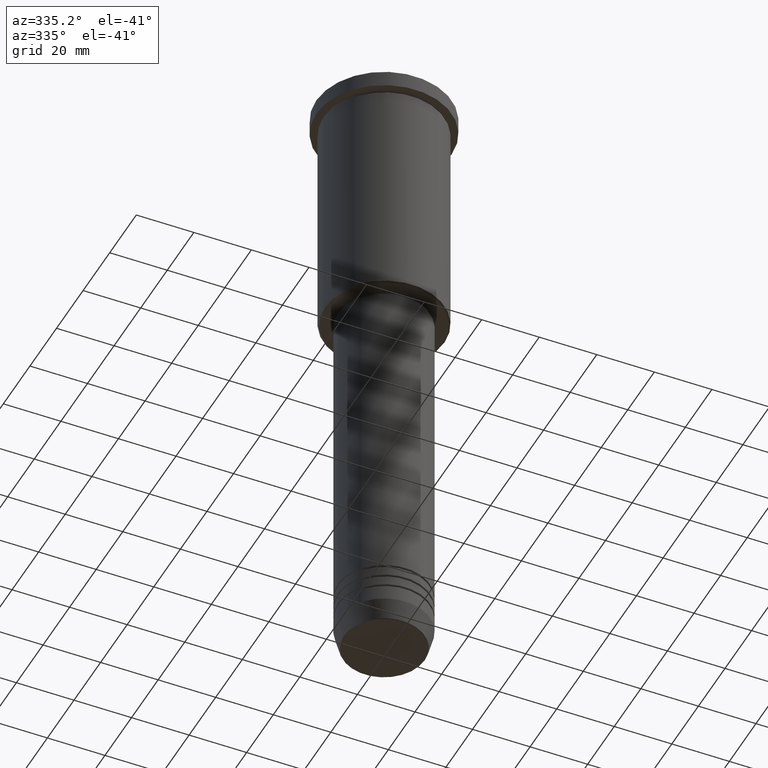
[diagram: clean part render]
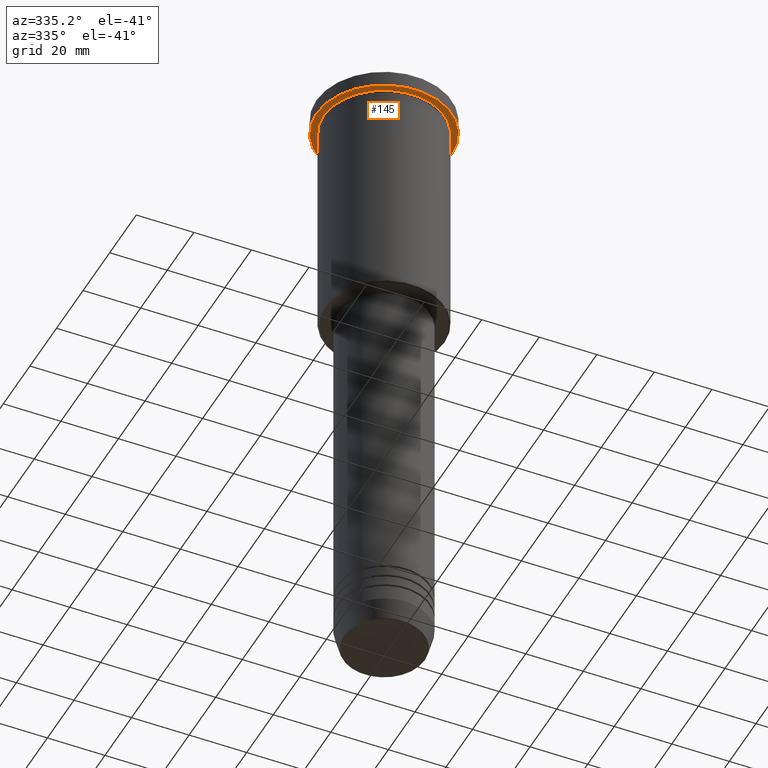
[diagram: same view with one face highlighted and labeled with its STEP entity id]
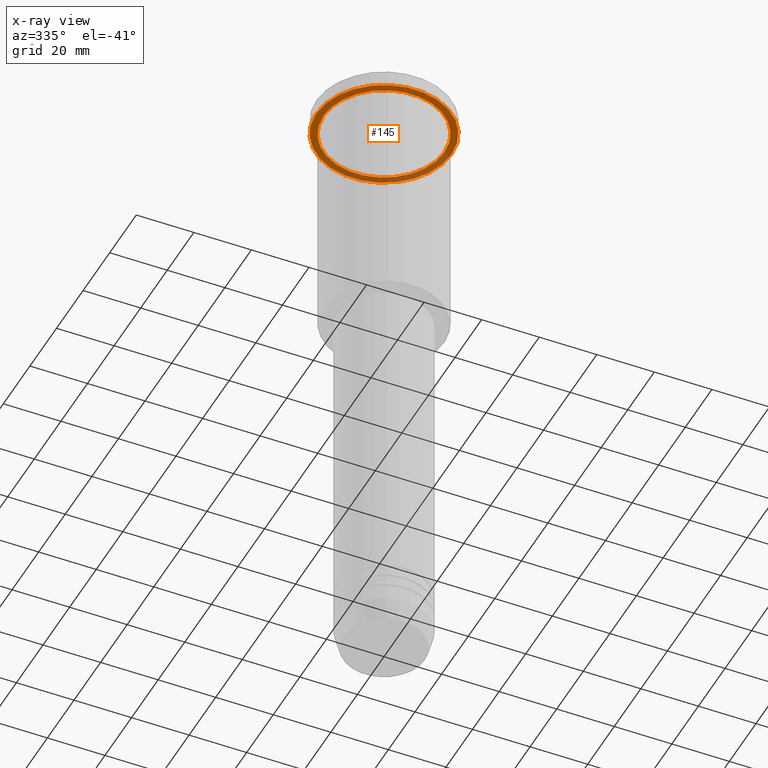
[diagram: x-ray of the same camera — body ghosted, the highlighted face saturated]
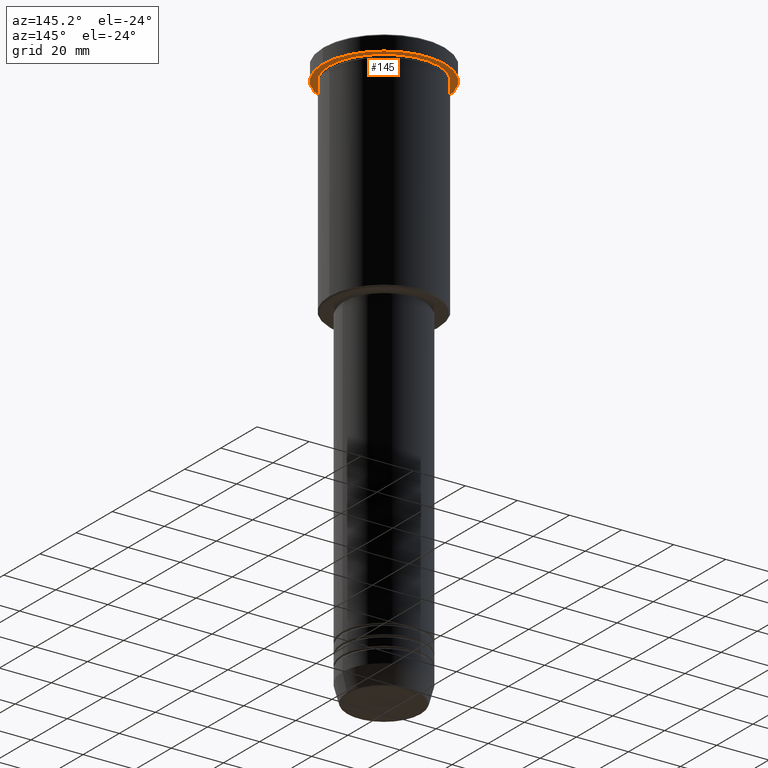
[diagram: same view with one face highlighted and labeled with its STEP entity id]
A machine part, auxiliary view. The second image highlights one B-rep face of the part: STEP entity #145.
The next image is the same camera in x-ray: the body ghosted, the highlighted face saturated — about 35% of this face is hidden behind the body in this view.
A second angle (auxiliary view) of the same face is appended — the face is thin or edge-on in the first view.
In plain terms, the highlighted planar face has unit normal (0, 0, -1).
Its self-contained STEP definition (entity closure, byte-faithful):
#5 = CARTESIAN_POINT ( 'NONE',  ( 0.000000000000000000, 23.50000000000000000, -5.999999999999993783 ) ) ;
#39 = AXIS2_PLACEMENT_3D ( 'NONE', #1126, #550, #758 ) ;
#46 = CIRCLE ( 'NONE', #347, 23.50000000000000000 ) ;
#55 = VERTEX_POINT ( 'NONE', #236 ) ;
#131 = DIRECTION ( 'NONE',  ( -0.000000000000000000, -0.000000000000000000, 1.000000000000000000 ) ) ;
#144 = ORIENTED_EDGE ( 'NONE', *, *, #281, .F. ) ;
#145 = ADVANCED_FACE ( 'NONE', ( #468, #353 ), #719, .T. ) ;
#163 = VERTEX_POINT ( 'NONE', #714 ) ;
#171 = EDGE_LOOP ( 'NONE', ( #144, #385 ) ) ;
#190 = VERTEX_POINT ( 'NONE', #543 ) ;
#236 = CARTESIAN_POINT ( 'NONE',  ( 23.50000000000000000, 0.000000000000000000, -5.999999999999993783 ) ) ;
#281 = EDGE_CURVE ( 'NONE', #55, #163, #46, .T. ) ;
#292 = CARTESIAN_POINT ( 'NONE',  ( 21.00000000000000000, 2.571758278209441661E-15, -5.999999999999992895 ) ) ;
#316 = DIRECTION ( 'NONE',  ( -0.000000000000000000, -0.000000000000000000, 1.000000000000000000 ) ) ;
#347 = AXIS2_PLACEMENT_3D ( 'NONE', #402, #743, #1021 ) ;
#353 = FACE_OUTER_BOUND ( 'NONE', #171, .T. ) ;
#385 = ORIENTED_EDGE ( 'NONE', *, *, #398, .F. ) ;
#386 = CIRCLE ( 'NONE', #977, 23.50000000000000000 ) ;
#398 = EDGE_CURVE ( 'NONE', #163, #55, #386, .T. ) ;
#402 = CARTESIAN_POINT ( 'NONE',  ( 0.000000000000000000, 0.000000000000000000, -5.999999999999993783 ) ) ;
#423 = DIRECTION ( 'NONE',  ( 1.000000000000000000, 0.000000000000000000, 0.000000000000000000 ) ) ;
#442 = CIRCLE ( 'NONE', #457, 21.00000000000000000 ) ;
#457 = AXIS2_PLACEMENT_3D ( 'NONE', #915, #131, #752 ) ;
#461 = DIRECTION ( 'NONE',  ( 0.000000000000000000, 0.000000000000000000, -1.000000000000000000 ) ) ;
#468 = FACE_BOUND ( 'NONE', #831, .T. ) ;
#497 = VERTEX_POINT ( 'NONE', #292 ) ;
#543 = CARTESIAN_POINT ( 'NONE',  ( -21.00000000000000000, 0.000000000000000000, -5.999999999999992895 ) ) ;
#550 = DIRECTION ( 'NONE',  ( -0.000000000000000000, -0.000000000000000000, 1.000000000000000000 ) ) ;
#567 = ORIENTED_EDGE ( 'NONE', *, *, #900, .T. ) ;
#645 = CIRCLE ( 'NONE', #39, 21.00000000000000000 ) ;
#714 = CARTESIAN_POINT ( 'NONE',  ( -23.50000000000000000, 2.877919977996280320E-15, -5.999999999999993783 ) ) ;
#719 = PLANE ( 'NONE',  #763 ) ;
#743 = DIRECTION ( 'NONE',  ( -0.000000000000000000, -0.000000000000000000, 1.000000000000000000 ) ) ;
#752 = DIRECTION ( 'NONE',  ( -1.000000000000000000, 0.000000000000000000, 0.000000000000000000 ) ) ;
#758 = DIRECTION ( 'NONE',  ( -1.000000000000000000, 0.000000000000000000, 0.000000000000000000 ) ) ;
#763 = AXIS2_PLACEMENT_3D ( 'NONE', #5, #461, #879 ) ;
#768 = CARTESIAN_POINT ( 'NONE',  ( 0.000000000000000000, 0.000000000000000000, -5.999999999999993783 ) ) ;
#831 = EDGE_LOOP ( 'NONE', ( #567, #838 ) ) ;
#838 = ORIENTED_EDGE ( 'NONE', *, *, #843, .T. ) ;
#843 = EDGE_CURVE ( 'NONE', #497, #190, #645, .T. ) ;
#879 = DIRECTION ( 'NONE',  ( -1.000000000000000000, 0.000000000000000000, -0.000000000000000000 ) ) ;
#900 = EDGE_CURVE ( 'NONE', #190, #497, #442, .T. ) ;
#915 = CARTESIAN_POINT ( 'NONE',  ( 0.000000000000000000, 0.000000000000000000, -5.999999999999993783 ) ) ;
#977 = AXIS2_PLACEMENT_3D ( 'NONE', #768, #316, #423 ) ;
#1021 = DIRECTION ( 'NONE',  ( 1.000000000000000000, 0.000000000000000000, 0.000000000000000000 ) ) ;
#1126 = CARTESIAN_POINT ( 'NONE',  ( 0.000000000000000000, 0.000000000000000000, -5.999999999999993783 ) ) ;